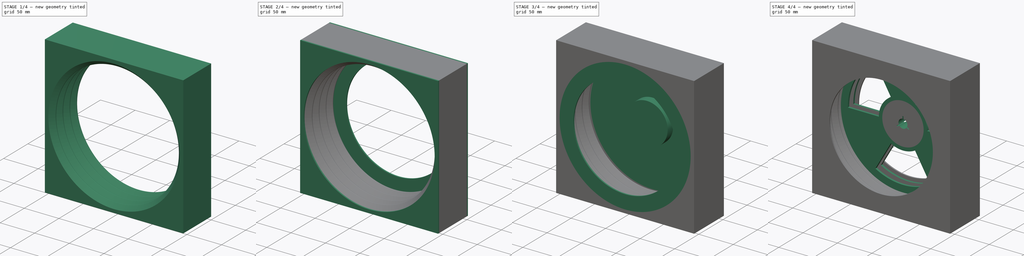
[diagram: build sequence overview — one tinted view per stage of 4, left to right]
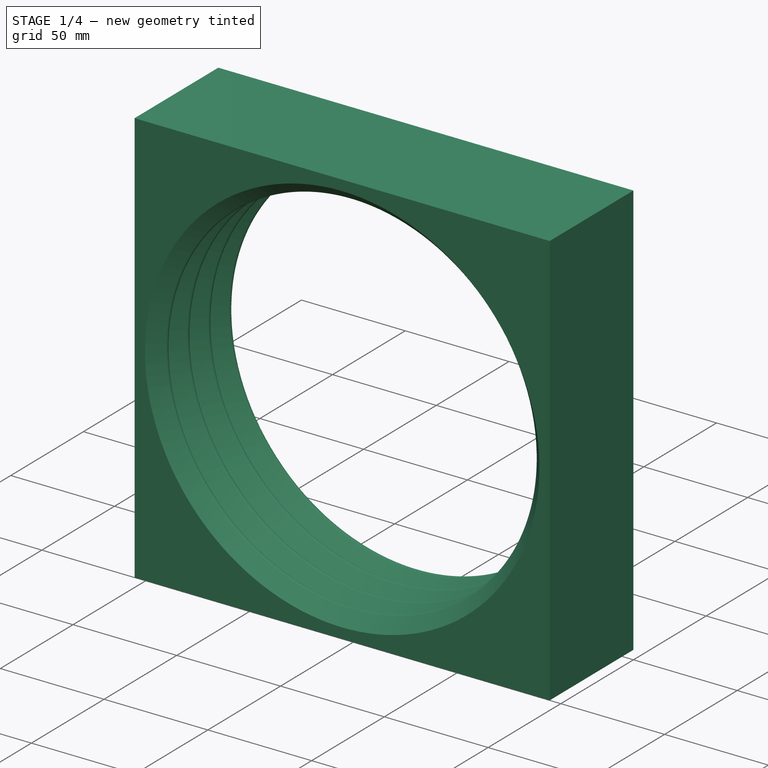
[diagram: stage 1 of 4 — iso view after this stage's code; geometry added in this stage tinted green]
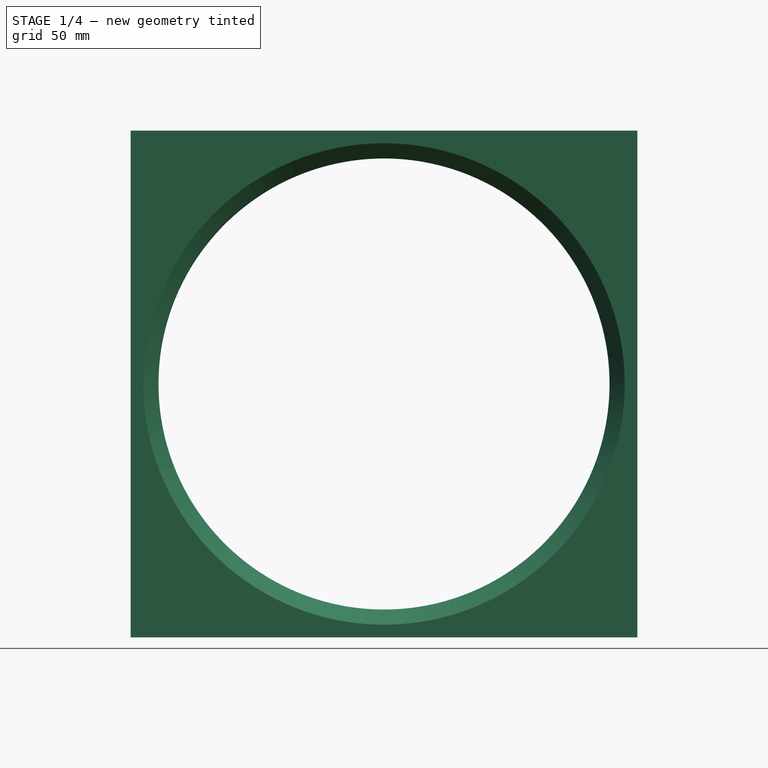
[diagram: stage 1 of 4 — front view after this stage's code; geometry added in this stage tinted green]
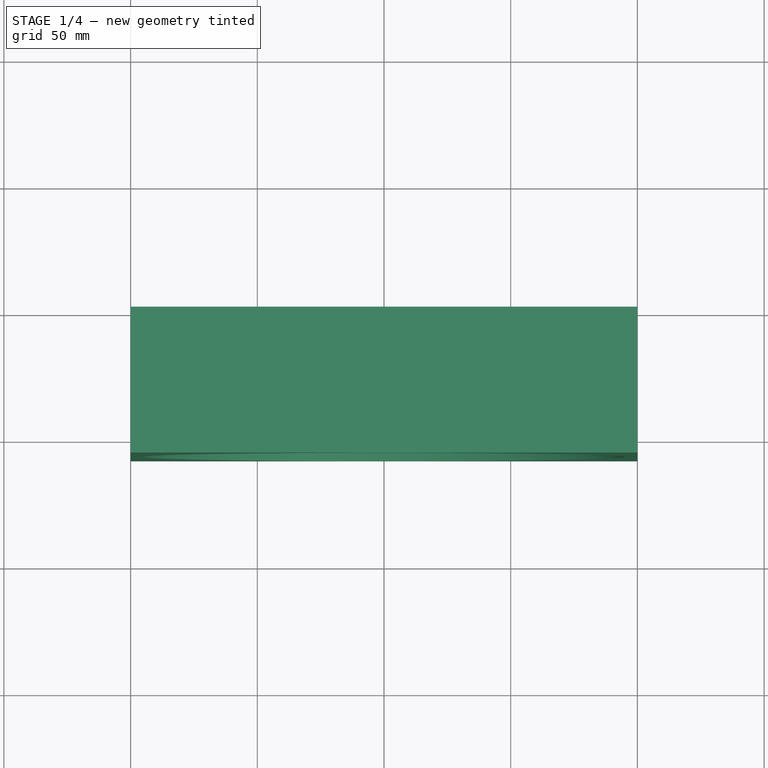
[diagram: stage 1 of 4 — top view after this stage's code; geometry added in this stage tinted green]
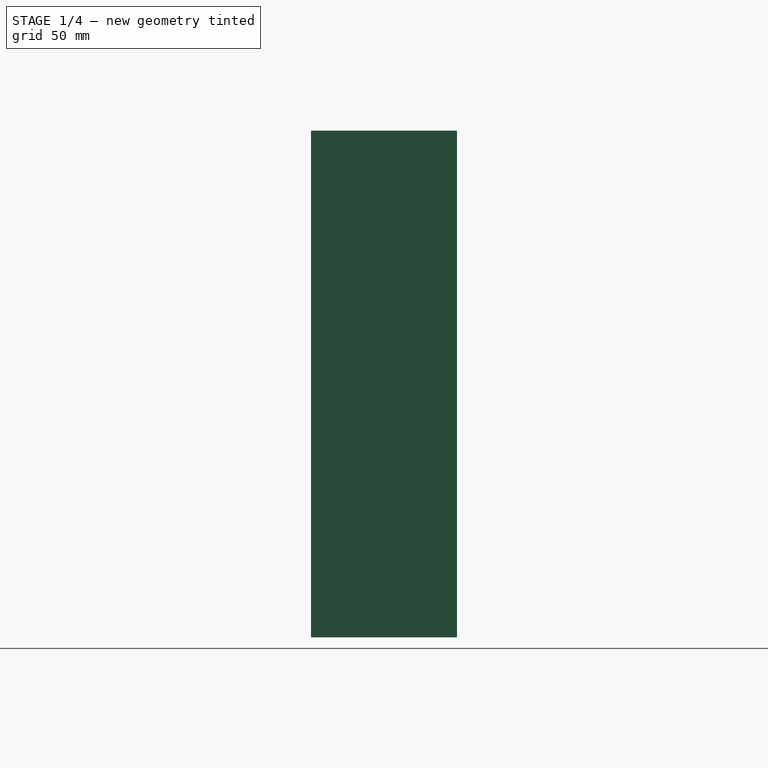
[diagram: stage 1 of 4 — right view after this stage's code; geometry added in this stage tinted green]
FCSTD DOCUMENT  (FreeCAD 0.19R24366 (Git))
Label: reel holder
License: Creative Commons Attribution-ShareAlike
LicenseURL: http://creativecommons.org/licenses/by-sa/4.0/
objects: Sketcher::SketchObject×8, PartDesign::Pad×7, PartDesign::Pocket×2, PartDesign::Body×2, PartDesign::LinearPattern×2, PartDesign::Revolution×1
note: 32 computed .brp shape members not serialized (recipe doc carries the construction recipe); baked Part::Feature solids carry a one-line shape summary decoded from their .brp

FEATURE [PartDesign::Body] Body  label="Reel"
  Group = -> [Sketch,Pad,Sketch001,Pad001,Sketch002,Pad002,Sketch003,Pocket,Sketch004,Pocket001]
  Origin = -> Origin
  Tip = -> Pocket001
FEATURE [Sketcher::SketchObject] Sketch005
  FullyConstrained = true
  MapMode = 5
  Placement = pos=(0,0,0) rot=(1,0,0;1.5708rad)
  Support = -> [XZ_Plane001]
  sketch-geometry (7):
    g0: LineSegment StartX=-100 StartY=100 StartZ=0 EndX=-100 EndY=-100 EndZ=0
    g1: LineSegment StartX=-100 StartY=-100 StartZ=0 EndX=100 EndY=-100 EndZ=0
    g2: LineSegment StartX=100 StartY=-100 StartZ=0 EndX=100 EndY=100 EndZ=0
    g3: GeomPoint X=0 Y=-95 Z=0
    g4: GeomPoint X=0 Y=-100 Z=0
    g5: Circle CenterX=0 CenterY=0 CenterZ=0 NormalX=0 NormalY=0 NormalZ=1 AngleXU=0 Radius=95
    g6: LineSegment StartX=-100 StartY=100 StartZ=0 EndX=100 EndY=100 EndZ=0
  constraints (17):
    c: Vertical(g0)
    c: Coincident(g0,g1)
    c: Horizontal(g1)
    c: Coincident(g1,g2)
    c: Vertical(g2)
    c: PointOnObject(g4,g1)
    c: PointOnObject(g4,g-2)
    c: PointOnObject(g3,g-2)
    c: DistanceY(g4,g3) = 5
    c: Diameter(g5) = 190  'MajorDiameter'
    c: PointOnObject(g3,g5)
    c: Coincident(g5,g-1)
    c: Equal(g2,g0)
    c: Coincident(g6,g0)
    c: Coincident(g6,g2)
    c: Symmetric(g1,g0,g5)
    c: Equal(g2,g6)
FEATURE [PartDesign::Pad] Pad003
  Direction = (1,1,1)
  Length = 57.6
  Length2 = 100
  Placement = pos=(0,0,0) rot=(1,0,0;1.5708rad)
  Profile = -> Sketch005
  Type = 0
FEATURE [Sketcher::SketchObject] Sketch006
  FullyConstrained = false
  MapMode = 5
  Placement = pos=(0,0,0) rot=(0.57735,0.57735,0.57735;2.0944rad)
  Support = -> [YZ_Plane001]
  expr: Constraints[1] = Sketch005.Constraints.MajorDiameter
  sketch-geometry (6):
    g0: LineSegment StartX=0 StartY=95 StartZ=0 EndX=0 EndY=-95 EndZ=0
    g1: LineSegment StartX=-14.4 StartY=-95 StartZ=0 EndX=-8.06972 EndY=-89.3248 EndZ=0
    g2: LineSegment StartX=-6.33028 StartY=-89.3248 StartZ=0 EndX=0 EndY=-95 EndZ=0
    g3: LineSegment StartX=-14.4 StartY=-95 StartZ=0 EndX=0 EndY=-95 EndZ=0
    g4: ArcOfCircle CenterX=-7.2 CenterY=-90.2949 CenterZ=0 NormalX=0 NormalY=0 NormalZ=1 AngleXU=0 Radius=1.30289 StartAngle=0.83991 EndAngle=2.30168
    g5: GeomPoint X=-7.2 Y=-88.5451 Z=0
  constraints (13):
    c: PointOnObject(g0,g-2)
    c: DistanceY(g0,g0) = 190
    c: Coincident(g3,g1)
    c: Coincident(g3,g2)
    c: Horizontal(g3)
    c: DistanceX(g3,g3) = 14.4
    c: PointOnObject(g5,g1)
    c: PointOnObject(g5,g2)
    c: Tangent(g1,g4) = 1.5708
    c: Tangent(g2,g4) = 1.5708
    c: Equal(g1,g2)
    c: Symmetric(g0,g0,g-1)
    c: Coincident(g2,g0)
FEATURE [PartDesign::Revolution] Revolution
  Angle = 360
  Axis = (1e-16,1,-1e-16)
  Base = (0,0,0)
  BaseFeature = -> Pad003
  Midplane = true
  Placement = pos=(0,0,0) rot=(1,0,0;1.5708rad)
  Profile = -> Sketch006
  ReferenceAxis = -> Y_Axis001
FEATURE [PartDesign::LinearPattern] LinearPattern
  BaseFeature = -> Revolution
  Direction = -> Sketch006 [H_Axis]
  Length = 43.2
  Occurrences = 4
  Originals = -> [Revolution]
  Placement = pos=(0,0,0) rot=(1,0,0;1.5708rad)
  Reversed = true
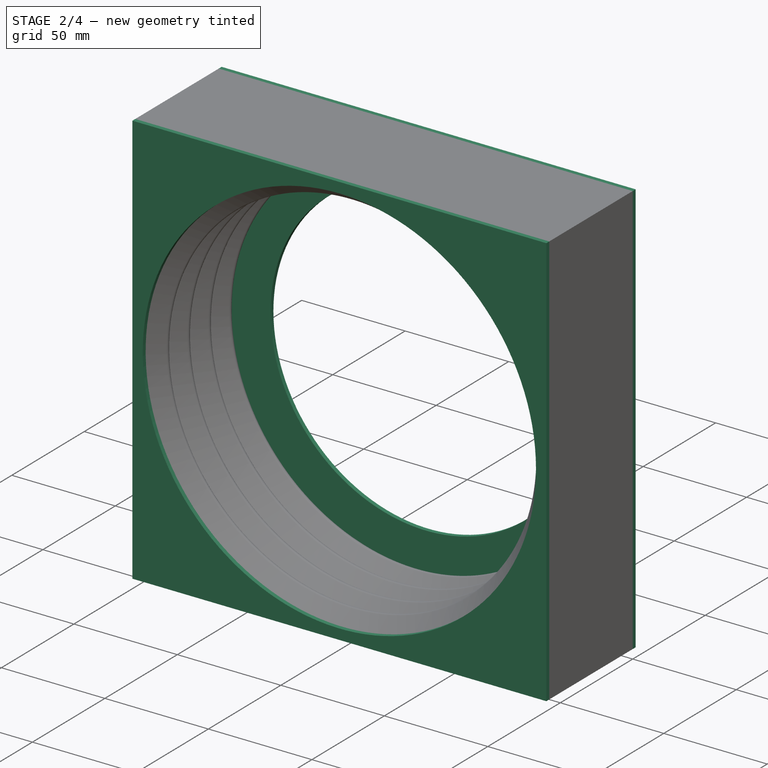
[diagram: stage 2 of 4 — iso view after this stage's code; geometry added in this stage tinted green]
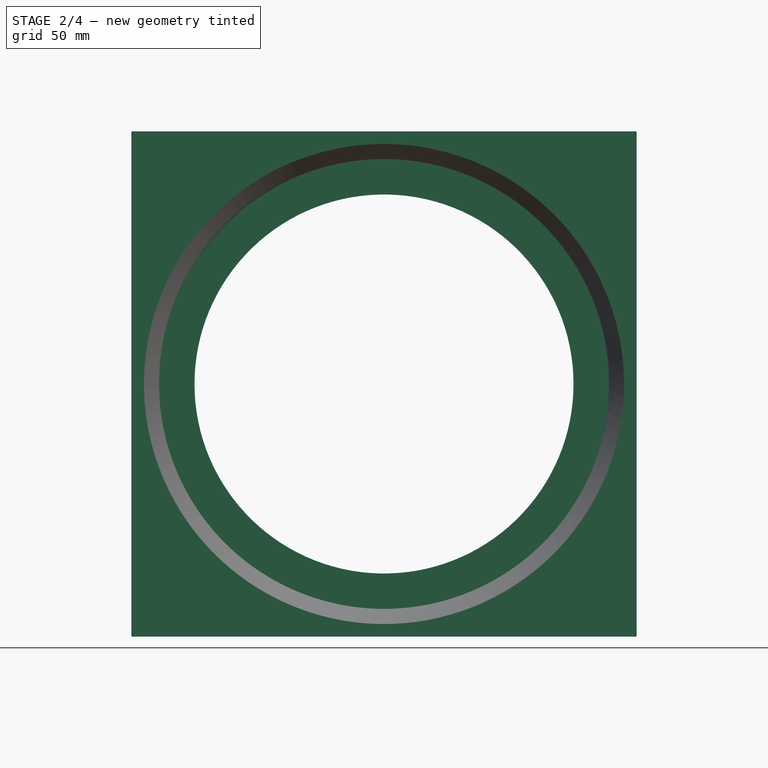
[diagram: stage 2 of 4 — front view after this stage's code; geometry added in this stage tinted green]
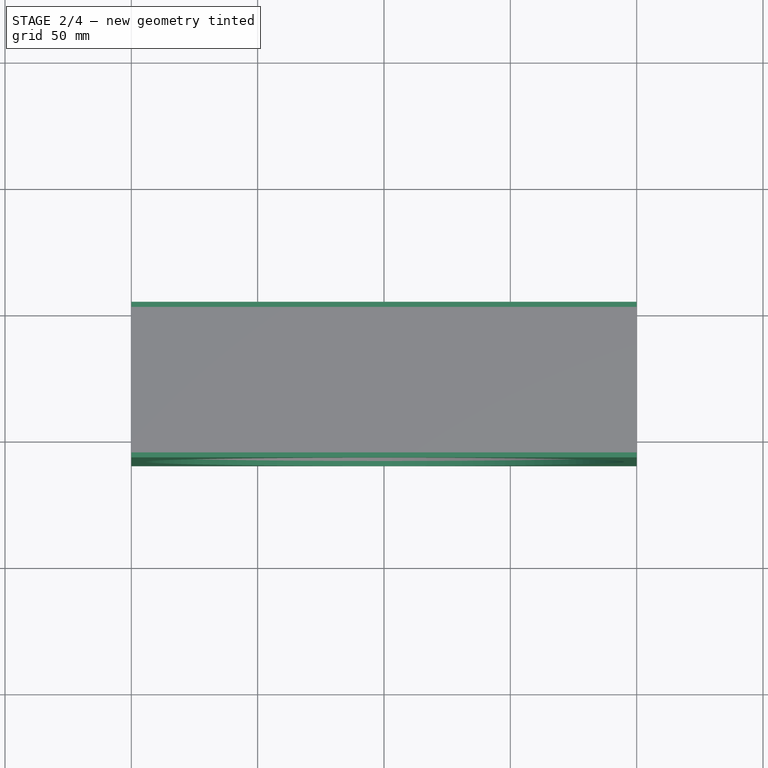
[diagram: stage 2 of 4 — top view after this stage's code; geometry added in this stage tinted green]
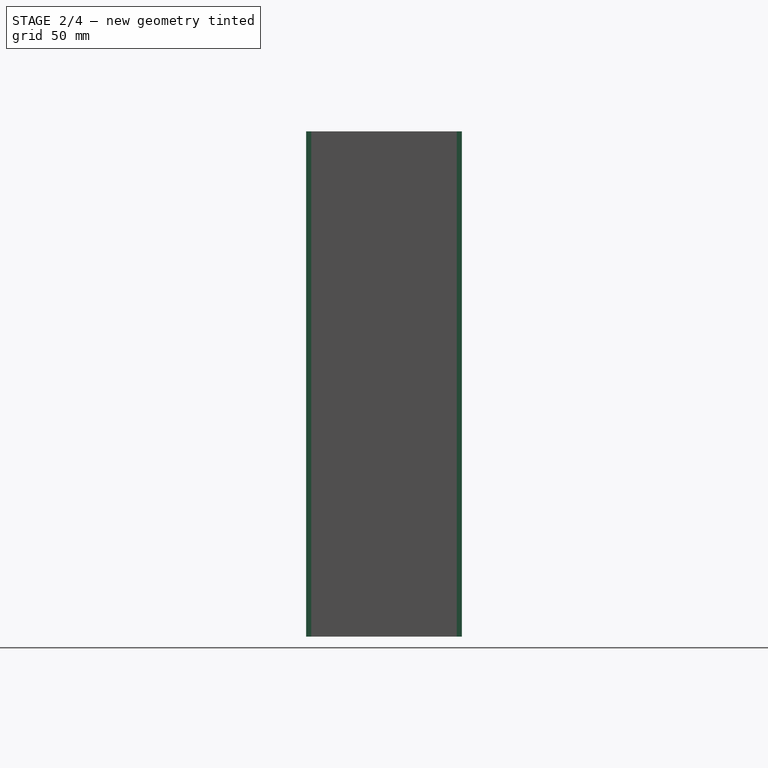
[diagram: stage 2 of 4 — right view after this stage's code; geometry added in this stage tinted green]
FEATURE [Sketcher::SketchObject] Sketch007
  FullyConstrained = true
  MapMode = 5
  Placement = pos=(0,0,0) rot=(1,0,0;1.5708rad)
  Support = -> [XZ_Plane001]
  expr: Constraints[1] = Sketch005.Constraints.MajorDiameter
  sketch-geometry (6):
    g0: Circle CenterX=1e-16 CenterY=0 CenterZ=0 NormalX=0 NormalY=0 NormalZ=1 AngleXU=0 Radius=95
    g1: Circle CenterX=0 CenterY=0 CenterZ=0 NormalX=0 NormalY=0 NormalZ=1 AngleXU=0 Radius=75
    g2: Circle CenterX=0 CenterY=0 CenterZ=0 NormalX=0 NormalY=0 NormalZ=1 AngleXU=0 Radius=100
    g3: GeomPoint X=75 Y=0 Z=0
    g4: GeomPoint X=95 Y=0 Z=0
    g5: GeomPoint X=100 Y=0 Z=0
  constraints (12):
    c: Coincident(g0,g-1)
    c: Diameter(g0) = 190
    c: Coincident(g1,g-1)
    c: Coincident(g2,g1)
    c: PointOnObject(g3,g1)
    c: PointOnObject(g4,g0)
    c: PointOnObject(g5,g2)
    c: PointOnObject(g3,g-1)
    c: PointOnObject(g4,g-1)
    c: PointOnObject(g5,g-1)
    c: DistanceX(g3,g4) = 20
    c: DistanceX(g4,g5) = 5
FEATURE [PartDesign::Pad] Pad005
  BaseFeature = -> LinearPattern
  Direction = (1,1,1)
  Length = 2
  Length2 = 100
  Placement = pos=(0,0,0) rot=(1,0,0;1.5708rad)
  Profile = -> LinearPattern [Face5]
  Type = 0
FEATURE [PartDesign::Pad] Pad006
  BaseFeature = -> Pad005
  Direction = (1,1,1)
  Length = 2
  Length2 = 100
  Placement = pos=(0,0,0) rot=(1,0,0;1.5708rad)
  Profile = -> Pad005 [Face4]
  Type = 0
FEATURE [PartDesign::Pad] Pad004
  BaseFeature = -> Pad006
  Direction = (1,1,1)
  Length = 2
  Length2 = 100
  Placement = pos=(0,0,0) rot=(1,0,0;1.5708rad)
  Profile = -> Sketch007
  Reversed = true
  Type = 0
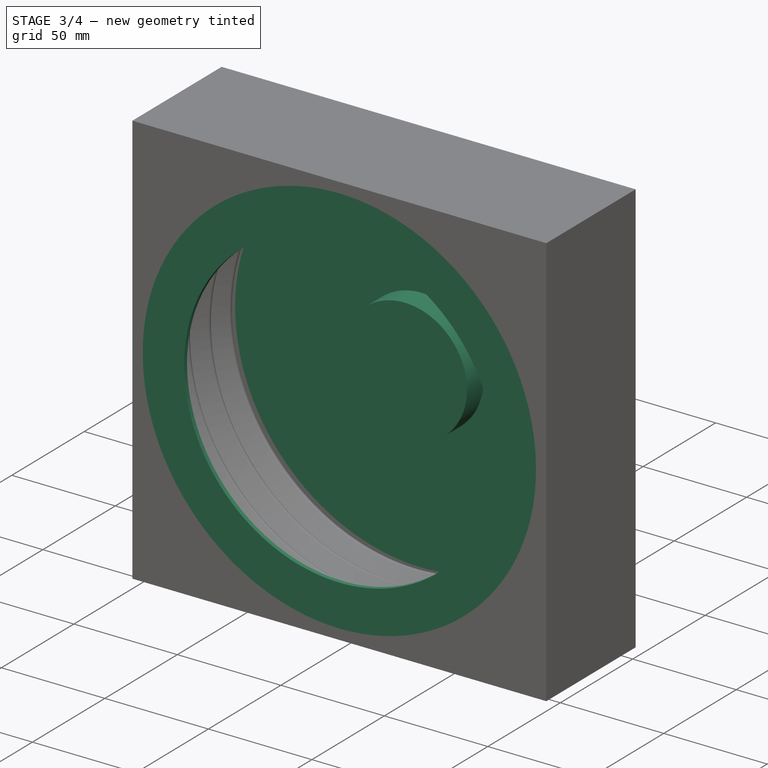
[diagram: stage 3 of 4 — iso view after this stage's code; geometry added in this stage tinted green]
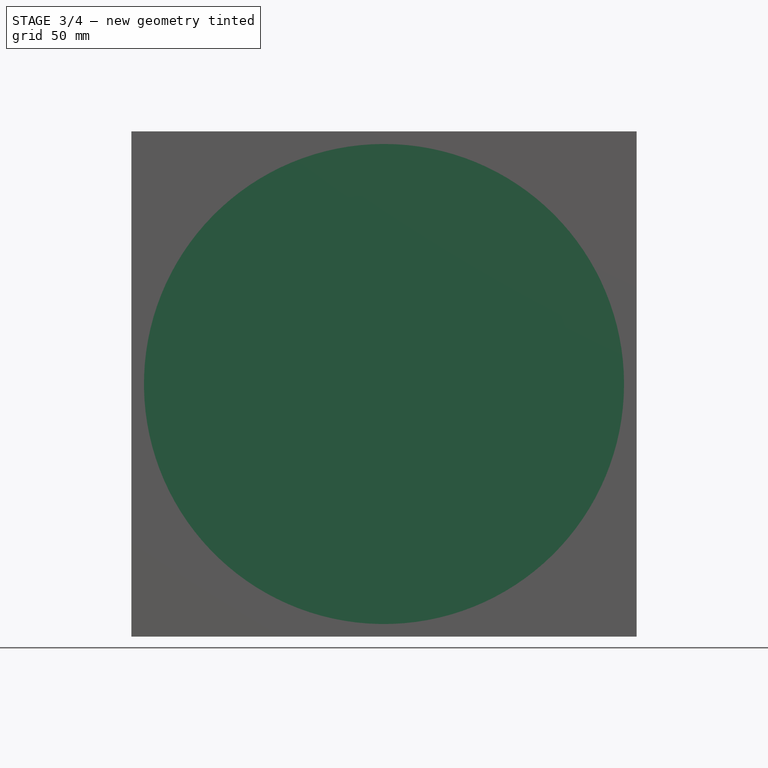
[diagram: stage 3 of 4 — front view after this stage's code; geometry added in this stage tinted green]
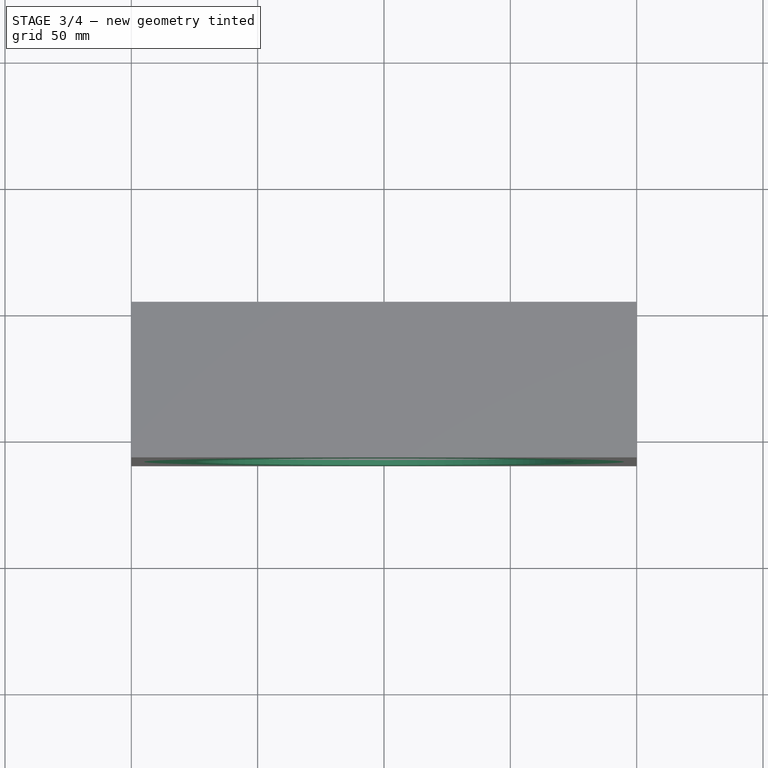
[diagram: stage 3 of 4 — top view after this stage's code; geometry added in this stage tinted green]
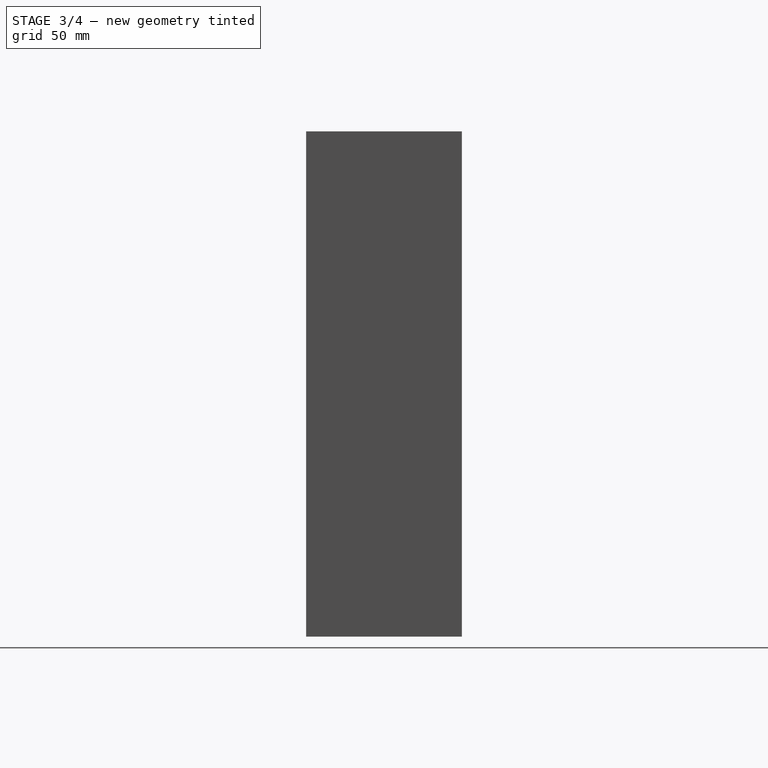
[diagram: stage 3 of 4 — right view after this stage's code; geometry added in this stage tinted green]
FEATURE [Sketcher::SketchObject] Sketch
  FullyConstrained = true
  MapMode = 5
  Placement = pos=(0,0,0) rot=(1,0,0;1.5708rad)
  Support = -> [XZ_Plane]
  sketch-geometry (1):
    g0: Circle CenterX=0 CenterY=0 CenterZ=0 NormalX=0 NormalY=0 NormalZ=1 AngleXU=0 Radius=90
  constraints (2):
    c: Coincident(g0,g-1)
    c: Diameter(g0) = 180
FEATURE [PartDesign::Pad] Pad  label="Side"
  Direction = (1,1,1)
  Length = 3
  Length2 = 100
  Placement = pos=(0,0,0) rot=(1,0,0;1.5708rad)
  Profile = -> Sketch
  Type = 0
FEATURE [Sketcher::SketchObject] Sketch001
  FullyConstrained = true
  MapMode = 5
  Placement = pos=(0,0,0) rot=(1,0,0;1.5708rad)
  Support = -> [XZ_Plane]
  sketch-geometry (1):
    g0: Circle CenterX=0 CenterY=0 CenterZ=0 NormalX=0 NormalY=0 NormalZ=1 AngleXU=0 Radius=30
  constraints (2):
    c: Coincident(g0,g-1)
    c: Diameter(g0) = 60
FEATURE [PartDesign::Pad] Pad001  label="Hub"
  BaseFeature = -> Pad
  Direction = (1,1,1)
  Length = 14.4
  Length2 = 100
  Placement = pos=(0,0,0) rot=(1,0,0;1.5708rad)
  Profile = -> Sketch001
  Type = 0
FEATURE [PartDesign::LinearPattern] LinearPattern001
  BaseFeature = -> Pad004
  Direction = -> Y_Axis001
  Length = 59.6
  Occurrences = 2
  Originals = -> [Pad004]
  Placement = pos=(0,0,0) rot=(1,0,0;1.5708rad)
  Reversed = true
FEATURE [PartDesign::Body] Body001  label="Holder"
  Group = -> [Sketch005,Pad003,Sketch006,Revolution,LinearPattern,Sketch007,Pad005,Pad006,Pad004,LinearPattern001]
  Origin = -> Origin001
  Tip = -> LinearPattern001
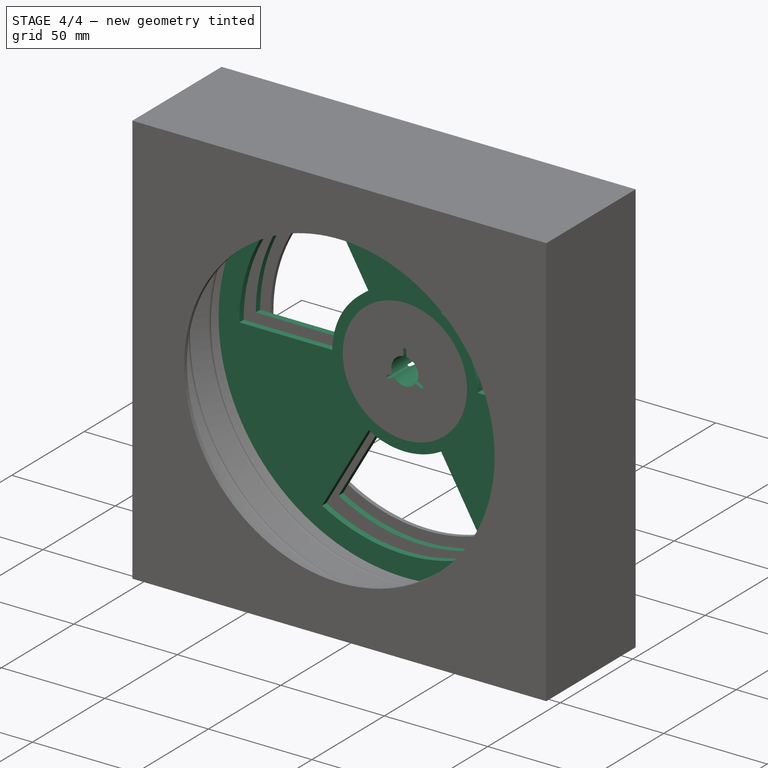
[diagram: stage 4 of 4 — iso view after this stage's code; geometry added in this stage tinted green]
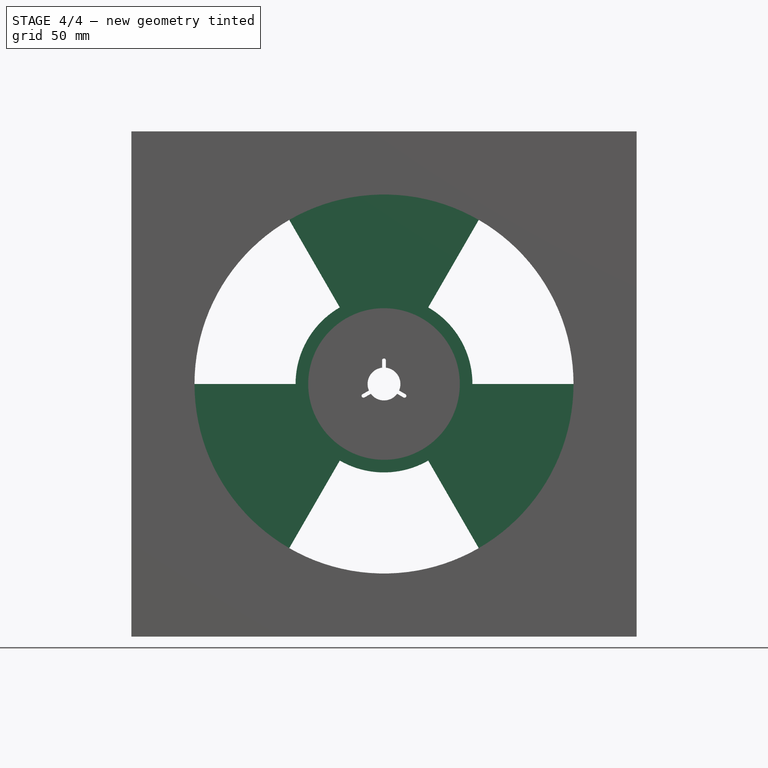
[diagram: stage 4 of 4 — front view after this stage's code; geometry added in this stage tinted green]
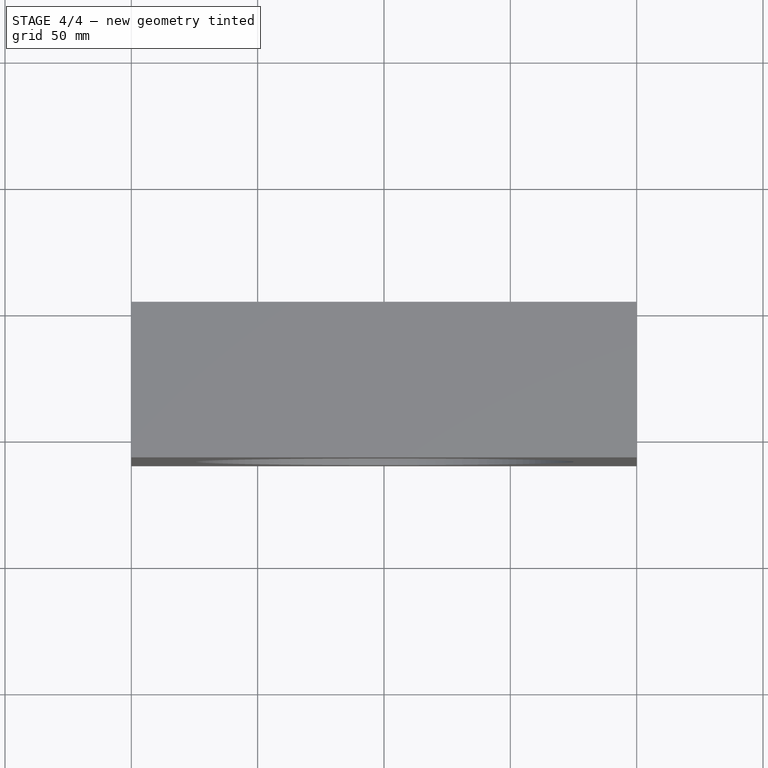
[diagram: stage 4 of 4 — top view after this stage's code; geometry added in this stage tinted green]
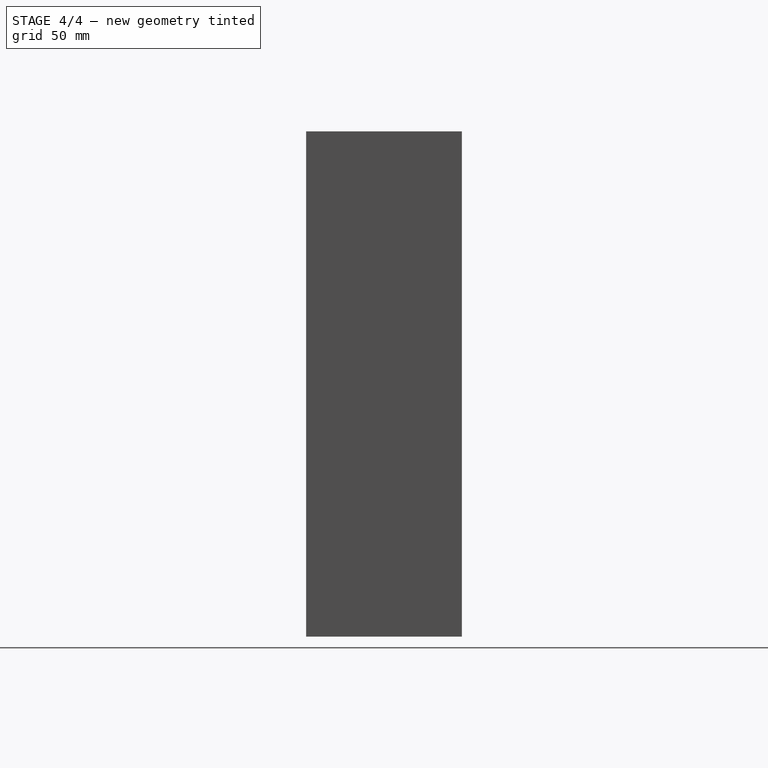
[diagram: stage 4 of 4 — right view after this stage's code; geometry added in this stage tinted green]
FEATURE [Sketcher::SketchObject] Sketch002
  AttachmentOffset = pos=(0,0,-14.4) rot=(0,0,1;0rad)
  FullyConstrained = true
  MapMode = 5
  Placement = pos=(0,-14.4,3.2e-15) rot=(0,0.707107,0.707107;3.14159rad)
  Support = -> [XZ_Plane]
  sketch-geometry (1):
    g0: Circle CenterX=0 CenterY=0 CenterZ=0 NormalX=0 NormalY=0 NormalZ=1 AngleXU=0 Radius=90
  constraints (2):
    c: Coincident(g0,g-1)
    c: Diameter(g0) = 180
FEATURE [PartDesign::Pad] Pad002  label="Side001"
  BaseFeature = -> Pad001
  Direction = (1,1,1)
  Length = 3
  Length2 = 100
  Placement = pos=(0,0,0) rot=(1,0,0;1.5708rad)
  Profile = -> Sketch002
  Type = 0
FEATURE [Sketcher::SketchObject] Sketch003
  FullyConstrained = true
  MapMode = 5
  Placement = pos=(0,0,0) rot=(1,0,0;1.5708rad)
  Support = -> [XZ_Plane]
  sketch-geometry (18):
    g0: ArcOfCircle CenterX=0 CenterY=0 CenterZ=0 NormalX=0 NormalY=0 NormalZ=1 AngleXU=0 Radius=6.5 StartAngle=1.68644 EndAngle=3.54955
    g1: Circle CenterX=0 CenterY=0 CenterZ=0 NormalX=0 NormalY=0 NormalZ=1 AngleXU=0 Radius=10.1
    g2: ArcOfCircle CenterX=0 CenterY=9.35 CenterZ=0 NormalX=0 NormalY=0 NormalZ=1 AngleXU=0 Radius=0.75 StartAngle=-9e-16 EndAngle=3.14159
    g3: ArcOfCircle CenterX=8.09734 CenterY=-4.675 CenterZ=0 NormalX=0 NormalY=0 NormalZ=1 AngleXU=0 Radius=0.75 StartAngle=4.18879 EndAngle=7.33038
    g4: ArcOfCircle CenterX=-8.09734 CenterY=-4.675 CenterZ=0 NormalX=0 NormalY=0 NormalZ=1 AngleXU=0 Radius=0.75 StartAngle=2.0944 EndAngle=5.23599
    g5: LineSegment StartX=0 StartY=0 StartZ=0 EndX=0 EndY=9.35 EndZ=0
    g6: LineSegment StartX=0 StartY=0 StartZ=0 EndX=8.09734 EndY=-4.675 EndZ=0
    g7: LineSegment StartX=0 StartY=0 StartZ=0 EndX=-8.09734 EndY=-4.675 EndZ=0
    g8: LineSegment StartX=-0.75 StartY=9.35 StartZ=0 EndX=-0.75 EndY=6.45659 EndZ=0
    g9: LineSegment StartX=0.75 StartY=9.35 StartZ=0 EndX=0.75 EndY=6.45659 EndZ=0
    g10: LineSegment StartX=8.47234 StartY=-4.02548 StartZ=0 EndX=5.96657 EndY=-2.57877 EndZ=0
    g11: LineSegment StartX=7.72234 StartY=-5.32452 StartZ=0 EndX=5.21657 EndY=-3.87781 EndZ=0
    g12: LineSegment StartX=7.72234 StartY=-5.32452 StartZ=0 EndX=8.47234 EndY=-4.02548 EndZ=0
    g13: ArcOfCircle CenterX=0 CenterY=0 CenterZ=0 NormalX=0 NormalY=0 NormalZ=1 AngleXU=0 Radius=6.5 StartAngle=5.87523 EndAngle=7.73834
    g14: LineSegment StartX=-8.47234 StartY=-4.02548 StartZ=0 EndX=-5.96657 EndY=-2.57877 EndZ=0
    g15: LineSegment StartX=-7.72234 StartY=-5.32452 StartZ=0 EndX=-5.21657 EndY=-3.87781 EndZ=0
    g16: LineSegment StartX=-8.47234 StartY=-4.02548 StartZ=0 EndX=-7.72234 EndY=-5.32452 EndZ=0
    g17: ArcOfCircle CenterX=0 CenterY=0 CenterZ=0 NormalX=0 NormalY=0 NormalZ=1 AngleXU=0 Radius=6.5 StartAngle=3.78083 EndAngle=5.64394
  constraints (46):
    c: Coincident(g0,g-1)
    c: Diameter(g0) = 13
    c: Coincident(g1,g0)
    c: Diameter(g1) = 20.2
    c: PointOnObject(g2,g-2)
    c: Diameter(g2) = 1.5
    c: Tangent(g2,g1)
    c: Equal(g4,g3)
    c: Equal(g3,g2)
    c: Tangent(g3,g1)
    c: Tangent(g4,g1)
    c: Coincident(g5,g0)
    c: Coincident(g5,g2)
    c: Coincident(g6,g0)
    c: Coincident(g6,g3)
    c: Coincident(g7,g0)
    c: Coincident(g7,g4)
    c: Angle(g6,g5) = 2.0944
    c: Angle(g7,g6) = 2.0944
    c: Vertical(g8)
    c: Vertical(g9)
    c: Equal(g9,g8)
    c: Coincident(g2,g9)
    c: Tangent(g2,g8) = -1.5708
    c: Coincident(g13,g9)
    c: Coincident(g0,g8)
    c: Equal(g10,g11)
    c: Coincident(g12,g11)
    c: Coincident(g12,g10)
    c: PointOnObject(g3,g12)
    c: Tangent(g3,g11) = 1.5708
    c: Tangent(g3,g10) = -1.5708
    c: Equal(g0,g13)
    c: Coincident(g13,g10)
    c: Coincident(g0,g13)
    c: Coincident(g17,g11)
    c: Coincident(g16,g14)
    c: Coincident(g16,g15)
    c: PointOnObject(g4,g16)
    c: Equal(g14,g15)
    c: Tangent(g4,g14) = 1.5708
    c: Tangent(g4,g15) = -1.5708
    c: Equal(g0,g17)
    c: Coincident(g17,g15)
    c: Coincident(g0,g17)
    c: Coincident(g0,g14)
FEATURE [PartDesign::Pocket] Pocket  label="Hole"
  BaseFeature = -> Pad002
  Length = 5
  Length2 = 100
  Placement = pos=(0,0,0) rot=(1,0,0;1.5708rad)
  Profile = -> Sketch003
  Reversed = true
  Type = 1
FEATURE [Sketcher::SketchObject] Sketch004
  FullyConstrained = true
  MapMode = 5
  Placement = pos=(0,0,0) rot=(1,0,0;1.5708rad)
  Support = -> [XZ_Plane]
  sketch-geometry (18):
    g0: ArcOfCircle CenterX=0 CenterY=0 CenterZ=0 NormalX=0 NormalY=0 NormalZ=1 AngleXU=0 Radius=35 StartAngle=4.18879 EndAngle=5.23599
    g1: ArcOfCircle CenterX=0 CenterY=0 CenterZ=0 NormalX=0 NormalY=0 NormalZ=1 AngleXU=0 Radius=80 StartAngle=4.18879 EndAngle=5.23599
    g2: LineSegment StartX=0 StartY=0 StartZ=0 EndX=-40 EndY=69.282 EndZ=0
    g3: LineSegment StartX=0 StartY=0 StartZ=0 EndX=40 EndY=69.282 EndZ=0
    g4: LineSegment StartX=0 StartY=0 StartZ=0 EndX=80 EndY=1.3e-15 EndZ=0
    g5: LineSegment StartX=0 StartY=0 StartZ=0 EndX=40 EndY=-69.282 EndZ=0
    g6: LineSegment StartX=0 StartY=0 StartZ=0 EndX=-40 EndY=-69.282 EndZ=0
    g7: LineSegment StartX=0 StartY=0 StartZ=0 EndX=-80 EndY=9.8e-15 EndZ=0
    g8: LineSegment StartX=-17.5 StartY=30.3109 StartZ=0 EndX=-40 EndY=69.282 EndZ=0
    g9: LineSegment StartX=17.5 StartY=30.3109 StartZ=0 EndX=40 EndY=69.282 EndZ=0
    g10: LineSegment StartX=-80 StartY=9.8e-15 StartZ=0 EndX=-35 EndY=9.8e-15 EndZ=0
    g11: LineSegment StartX=-17.5 StartY=-30.3109 StartZ=0 EndX=-40 EndY=-69.282 EndZ=0
    g12: LineSegment StartX=40 StartY=-69.282 StartZ=0 EndX=17.5 EndY=-30.3109 EndZ=0
    g13: LineSegment StartX=80 StartY=1.3e-15 StartZ=0 EndX=35 EndY=1.3e-15 EndZ=0
    g14: ArcOfCircle CenterX=0 CenterY=0 CenterZ=0 NormalX=0 NormalY=0 NormalZ=1 AngleXU=0 Radius=80 StartAngle=0 EndAngle=1.0472
    g15: ArcOfCircle CenterX=0 CenterY=0 CenterZ=0 NormalX=0 NormalY=0 NormalZ=1 AngleXU=0 Radius=35 StartAngle=0 EndAngle=1.0472
    g16: ArcOfCircle CenterX=0 CenterY=0 CenterZ=0 NormalX=0 NormalY=0 NormalZ=1 AngleXU=0 Radius=80 StartAngle=2.0944 EndAngle=3.14159
    g17: ArcOfCircle CenterX=0 CenterY=0 CenterZ=0 NormalX=0 NormalY=0 NormalZ=1 AngleXU=0 Radius=35 StartAngle=2.0944 EndAngle=3.14159
  constraints (56):
    c: Coincident(g0,g-1)
    c: Coincident(g1,g0)
    c: Diameter(g0) = 70
    c: Diameter(g1) = 160
    c: Coincident(g2,g0)
    c: PointOnObject(g2,g1)
    c: Coincident(g3,g0)
    c: PointOnObject(g3,g1)
    c: Coincident(g4,g0)
    c: Coincident(g5,g0)
    c: Coincident(g6,g0)
    c: Coincident(g7,g0)
    c: Angle(g3,g2) = 1.0472
    c: Angle(g5,g4) = 1.0472
    c: Angle(g7,g6) = 1.0472
    c: Angle(g4,g3) = 1.0472
    c: Angle(g2,g7) = 1.0472
    c: Angle(g3,g-2) = 0.523599
    c: PointOnObject(g8,g0)
    c: Coincident(g8,g2)
    c: PointOnObject(g8,g2)
    c: PointOnObject(g9,g0)
    c: Coincident(g9,g3)
    c: PointOnObject(g9,g3)
    c: Coincident(g10,g7)
    c: PointOnObject(g10,g0)
    c: Horizontal(g10)
    c: PointOnObject(g11,g0)
    c: Coincident(g11,g6)
    c: PointOnObject(g11,g6)
    c: Coincident(g12,g5)
    c: PointOnObject(g12,g5)
    c: PointOnObject(g12,g0)
    c: Coincident(g13,g4)
    c: PointOnObject(g13,g0)
    c: Horizontal(g13)
    c: PointOnObject(g0,g6)
    c: PointOnObject(g17,g7)
    c: Coincident(g1,g6)
    c: Coincident(g16,g7)
    c: Equal(g1,g14)
    c: Coincident(g1,g5)
    c: Coincident(g14,g4)
    c: Coincident(g1,g14)
    c: Equal(g0,g15)
    c: PointOnObject(g0,g5)
    c: PointOnObject(g15,g4)
    c: Coincident(g0,g15)
    c: Equal(g14,g16)
    c: PointOnObject(g14,g3)
    c: PointOnObject(g16,g2)
    c: Coincident(g14,g16)
    c: Equal(g15,g17)
    c: PointOnObject(g15,g3)
    c: PointOnObject(g17,g2)
    c: Coincident(g15,g17)
FEATURE [PartDesign::Pocket] Pocket001
  BaseFeature = -> Pocket
  Length = 5
  Length2 = 100
  Placement = pos=(0,0,0) rot=(1,0,0;1.5708rad)
  Profile = -> Sketch004
  Reversed = true
  Type = 1
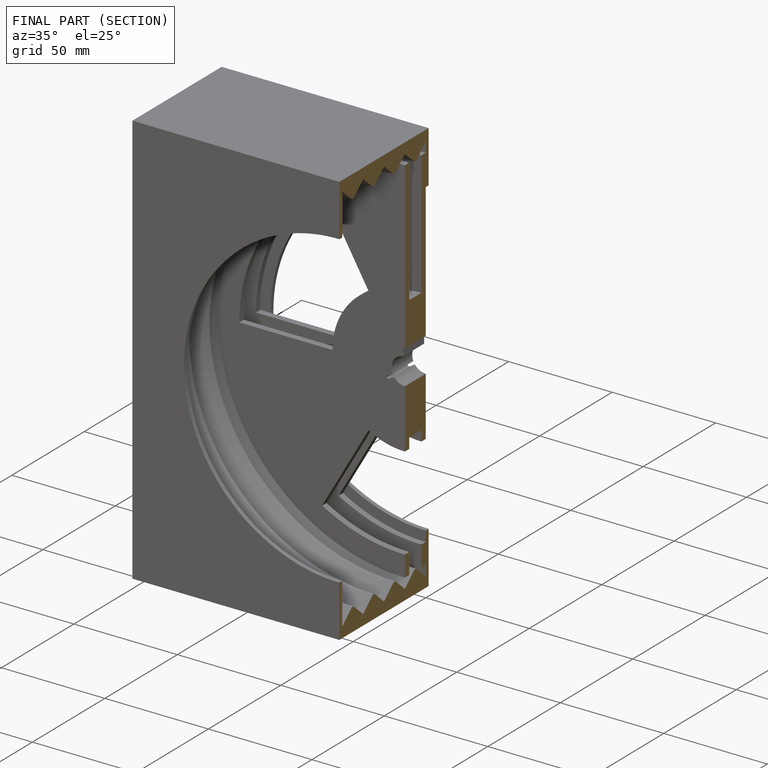
[diagram: finished part — half-section view (interior)]
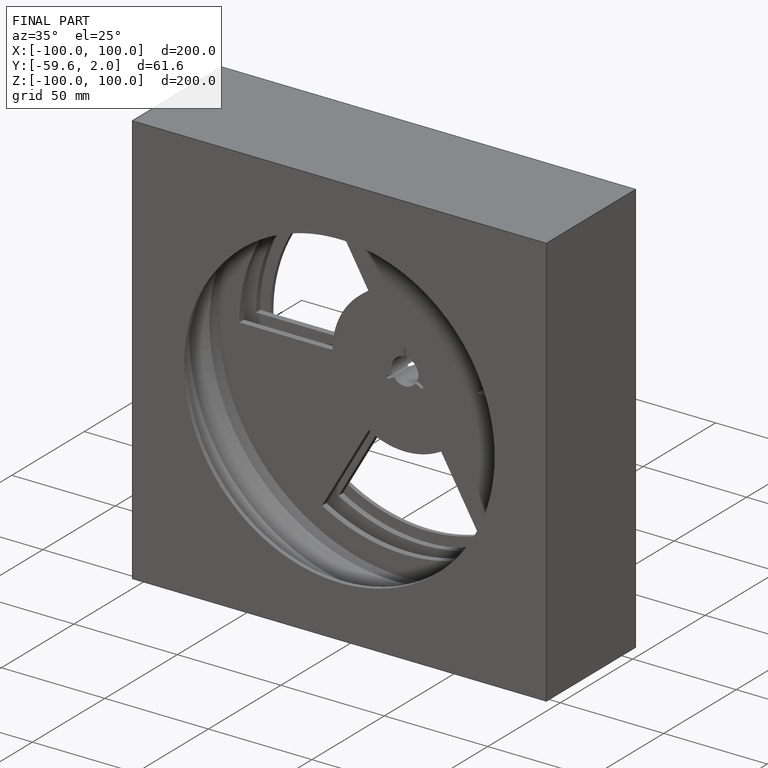
[diagram: finished part — iso view with bounding-box wireframe]
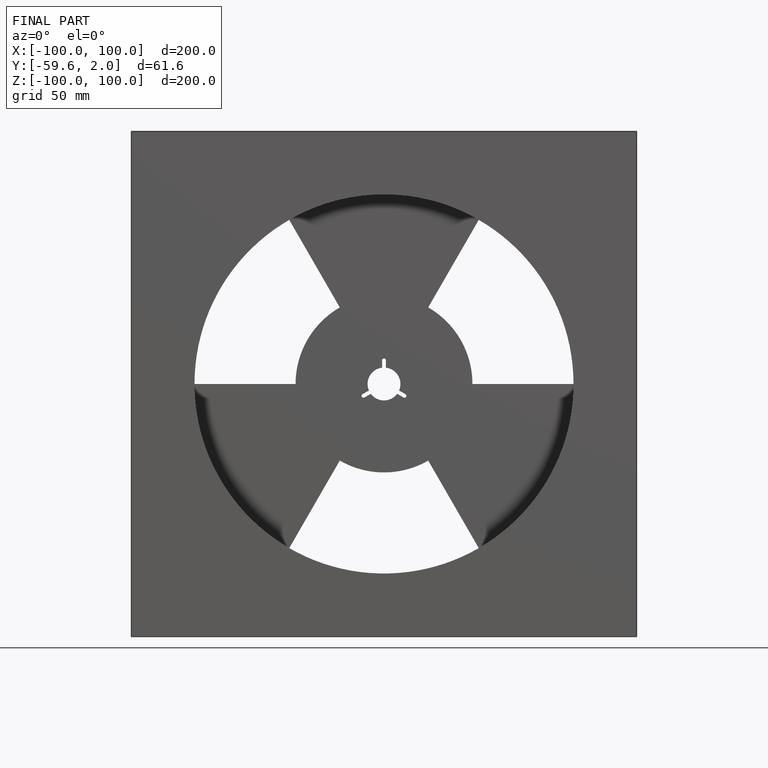
[diagram: finished part — front view with bounding-box wireframe]
